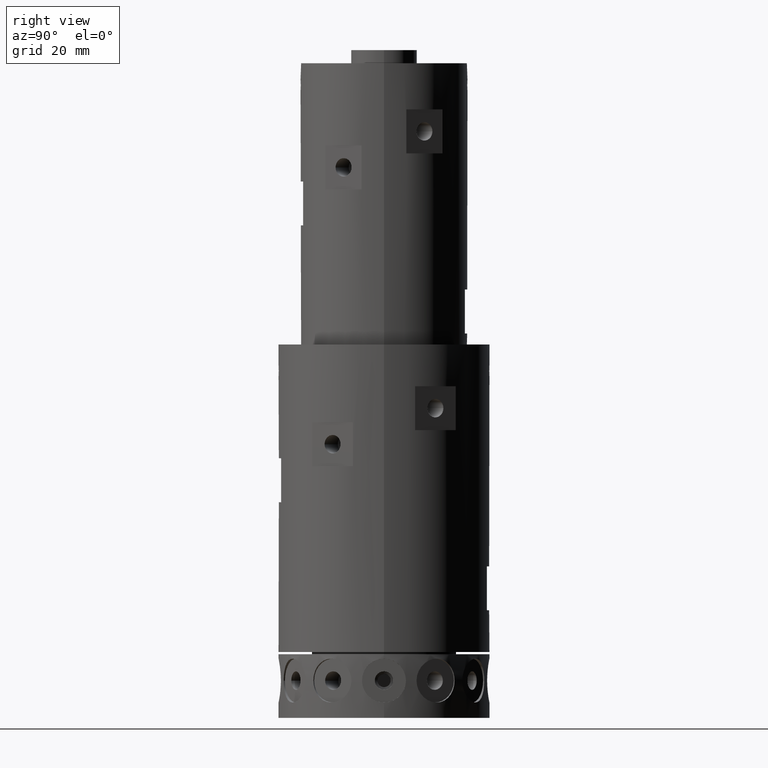
[diagram: clean part render]
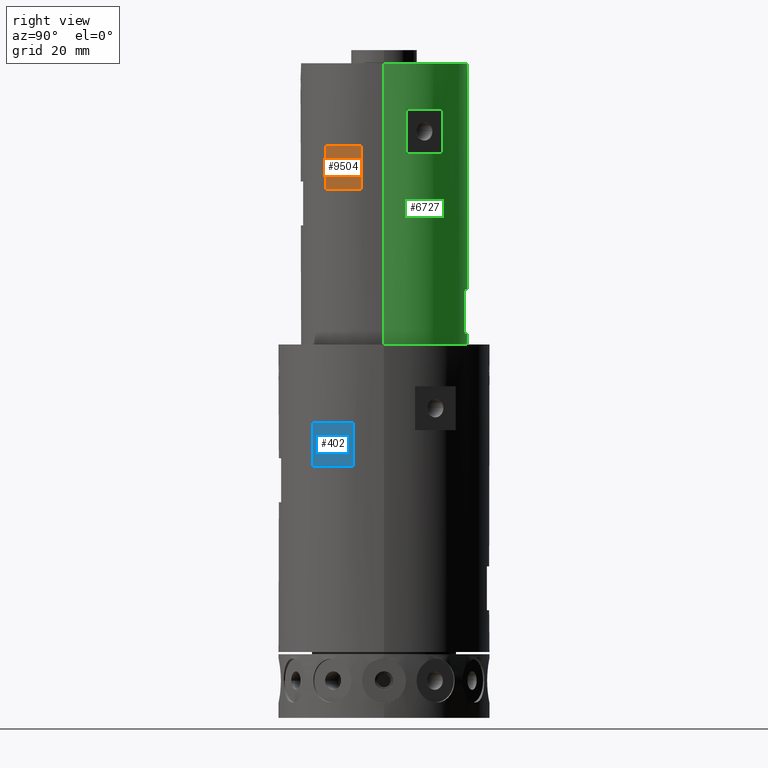
[diagram: same view with three faces highlighted in distinct colors, each labeled with its STEP entity id]
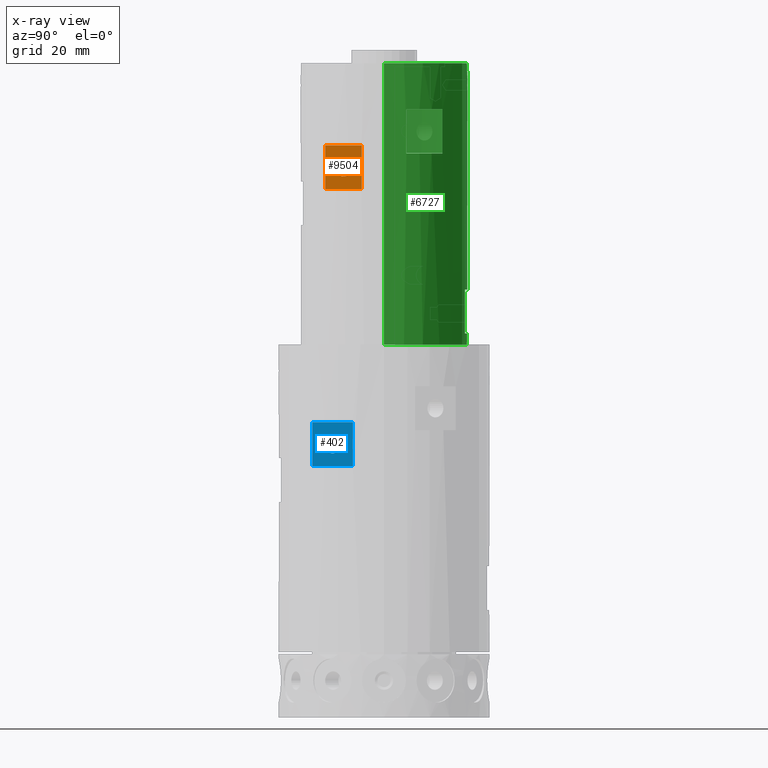
[diagram: x-ray of the same camera — body ghosted, the three highlighted faces saturated]
A machine part, right view with three faces highlighted in distinct colors.
The next image is the same camera in x-ray (body ghosted, the three faces saturated) — at least one of them is partly hidden behind the body in this view.
Their STEP definitions:

[orange] entity #9504 — the highlighted planar face has unit normal (-0.866, 0.5, 0).
#174 = CARTESIAN_POINT ( 'NONE',  ( 14.88486742963363200, -11.01865334794738900, 125.3000000000000000 ) ) ;
#500 = ORIENTED_EDGE ( 'NONE', *, *, #3234, .F. ) ;
#800 = LINE ( 'NONE', #1451, #5185 ) ;
#869 = DIRECTION ( 'NONE',  ( -0.0000000000000000000, -0.0000000000000000000, -1.000000000000000000 ) ) ;
#1186 = LINE ( 'NONE', #3003, #4598 ) ;
#1353 = CARTESIAN_POINT ( 'NONE',  ( 15.93486742963363600, -9.200000000000081000, 125.3000000000000000 ) ) ;
#1451 = CARTESIAN_POINT ( 'NONE',  ( 12.81503244960727600, -14.60371269663629000, 130.3000000000000100 ) ) ;
#2076 = VERTEX_POINT ( 'NONE', #9447 ) ;
#2140 = DIRECTION ( 'NONE',  ( 0.5000000000000047700, 0.8660254037844359300, 0.0000000000000000000 ) ) ;
#2286 = ORIENTED_EDGE ( 'NONE', *, *, #6795, .T. ) ;
#2421 = VERTEX_POINT ( 'NONE', #6896 ) ;
#2424 = DIRECTION ( 'NONE',  ( -0.8660254037844363800, 0.5000000000000040000, 0.0000000000000000000 ) ) ;
#2917 = CARTESIAN_POINT ( 'NONE',  ( 16.98486742963364200, -7.381346652052772400, 125.3000000000000000 ) ) ;
#3003 = CARTESIAN_POINT ( 'NONE',  ( 12.81503244960727600, -14.60371269663629000, 120.3000000000000000 ) ) ;
#3234 = EDGE_CURVE ( 'NONE', #2421, #6018, #3955, .T. ) ;
#3265 = VERTEX_POINT ( 'NONE', #174 ) ;
#3580 = LINE ( 'NONE', #8672, #7747 ) ;
#3710 = VECTOR ( 'NONE', #7187, 1000.000000000000000 ) ;
#3808 = VERTEX_POINT ( 'NONE', #2917 ) ;
#3902 = AXIS2_PLACEMENT_3D ( 'NONE', #7912, #2424, #4769 ) ;
#3955 = LINE ( 'NONE', #4810, #3710 ) ;
#4012 = PLANE ( 'NONE',  #3902 ) ;
#4032 = CARTESIAN_POINT ( 'NONE',  ( 15.93486742963363600, -9.200000000000081000, 125.3000000000000000 ) ) ;
#4152 = FACE_BOUND ( 'NONE', #9156, .T. ) ;
#4598 = VECTOR ( 'NONE', #5362, 1000.000000000000100 ) ;
#4599 = AXIS2_PLACEMENT_3D ( 'NONE', #4032, #9505, #4790 ) ;
#4769 = DIRECTION ( 'NONE',  ( -0.5000000000000040000, -0.8660254037844363800, 0.0000000000000000000 ) ) ;
#4790 = DIRECTION ( 'NONE',  ( 0.5000000000000047700, 0.8660254037844359300, 0.0000000000000000000 ) ) ;
#4810 = CARTESIAN_POINT ( 'NONE',  ( 13.56632357316821700, -13.30243829935325700, 149.0000000000000300 ) ) ;
#5185 = VECTOR ( 'NONE', #6923, 1000.000000000000100 ) ;
#5362 = DIRECTION ( 'NONE',  ( 0.5000000000000040000, 0.8660254037844363800, 0.0000000000000000000 ) ) ;
#5453 = EDGE_CURVE ( 'NONE', #2076, #6096, #3580, .T. ) ;
#5607 = ORIENTED_EDGE ( 'NONE', *, *, #7538, .T. ) ;
#6018 = VERTEX_POINT ( 'NONE', #8178 ) ;
#6096 = VERTEX_POINT ( 'NONE', #9030 ) ;
#6356 = CIRCLE ( 'NONE', #7826, 2.099999999999991700 ) ;
#6650 = ORIENTED_EDGE ( 'NONE', *, *, #5453, .F. ) ;
#6795 = EDGE_CURVE ( 'NONE', #2421, #6096, #1186, .T. ) ;
#6827 = DIRECTION ( 'NONE',  ( 0.8660254037844363800, -0.5000000000000043300, -0.0000000000000000000 ) ) ;
#6896 = CARTESIAN_POINT ( 'NONE',  ( 13.56632357316821200, -13.30243829935325400, 120.3000000000000000 ) ) ;
#6923 = DIRECTION ( 'NONE',  ( -0.5000000000000040000, -0.8660254037844363800, -0.0000000000000000000 ) ) ;
#7146 = EDGE_CURVE ( 'NONE', #3808, #3265, #8420, .T. ) ;
#7187 = DIRECTION ( 'NONE',  ( 0.0000000000000000000, 0.0000000000000000000, 1.000000000000000000 ) ) ;
#7399 = EDGE_LOOP ( 'NONE', ( #5607, #500, #2286, #6650 ) ) ;
#7538 = EDGE_CURVE ( 'NONE', #2076, #6018, #800, .T. ) ;
#7747 = VECTOR ( 'NONE', #869, 1000.000000000000000 ) ;
#7818 = FACE_OUTER_BOUND ( 'NONE', #7399, .T. ) ;
#7826 = AXIS2_PLACEMENT_3D ( 'NONE', #1353, #6827, #2140 ) ;
#7912 = CARTESIAN_POINT ( 'NONE',  ( 19.05470240965997800, -3.796287303363854400, 130.3000000000000100 ) ) ;
#8178 = CARTESIAN_POINT ( 'NONE',  ( 13.56632357316821700, -13.30243829935325700, 130.3000000000000100 ) ) ;
#8420 = CIRCLE ( 'NONE', #4599, 2.099999999999991700 ) ;
#8672 = CARTESIAN_POINT ( 'NONE',  ( 18.30341128609904500, -5.097561700646895000, 149.0000000000000300 ) ) ;
#8687 = EDGE_CURVE ( 'NONE', #3265, #3808, #6356, .T. ) ;
#9030 = CARTESIAN_POINT ( 'NONE',  ( 18.30341128609904200, -5.097561700646895000, 120.3000000000000000 ) ) ;
#9156 = EDGE_LOOP ( 'NONE', ( #9171, #9326 ) ) ;
#9171 = ORIENTED_EDGE ( 'NONE', *, *, #7146, .F. ) ;
#9326 = ORIENTED_EDGE ( 'NONE', *, *, #8687, .F. ) ;
#9447 = CARTESIAN_POINT ( 'NONE',  ( 18.30341128609904200, -5.097561700646895000, 130.3000000000000100 ) ) ;
#9504 = ADVANCED_FACE ( 'NONE', ( #4152, #7818 ), #4012, .F. ) ;
#9505 = DIRECTION ( 'NONE',  ( 0.8660254037844363800, -0.5000000000000043300, -0.0000000000000000000 ) ) ;

[blue] entity #402 — the highlighted planar face has unit normal (-0.866, 0.5, 0).
#52 = DIRECTION ( 'NONE',  ( -0.8660254037844363800, 0.5000000000000040000, 0.0000000000000000000 ) ) ;
#289 = CIRCLE ( 'NONE', #7080, 2.099999999999983700 ) ;
#402 = ADVANCED_FACE ( 'NONE', ( #8025, #10112 ), #9424, .F. ) ;
#444 = DIRECTION ( 'NONE',  ( 0.5000000000000040000, 0.8660254037844363800, 0.0000000000000000000 ) ) ;
#458 = EDGE_LOOP ( 'NONE', ( #3377, #7313, #9608, #3032 ) ) ;
#898 = VERTEX_POINT ( 'NONE', #5982 ) ;
#1109 = CARTESIAN_POINT ( 'NONE',  ( 17.59853612336109300, -16.31844129550230300, 85.00000000000000000 ) ) ;
#1334 = VECTOR ( 'NONE', #1884, 1000.000000000000000 ) ;
#1572 = LINE ( 'NONE', #1109, #1334 ) ;
#1884 = DIRECTION ( 'NONE',  ( 0.0000000000000000000, 0.0000000000000000000, 1.000000000000000000 ) ) ;
#2414 = AXIS2_PLACEMENT_3D ( 'NONE', #8648, #3960, #9435 ) ;
#2593 = DIRECTION ( 'NONE',  ( -0.0000000000000000000, -0.0000000000000000000, -1.000000000000000000 ) ) ;
#2695 = LINE ( 'NONE', #3717, #6872 ) ;
#2786 = AXIS2_PLACEMENT_3D ( 'NONE', #7059, #52, #5510 ) ;
#3032 = ORIENTED_EDGE ( 'NONE', *, *, #6569, .F. ) ;
#3306 = CARTESIAN_POINT ( 'NONE',  ( 17.59853612336109300, -16.31844129550230300, 67.29999999999999700 ) ) ;
#3377 = ORIENTED_EDGE ( 'NONE', *, *, #3814, .T. ) ;
#3467 = VECTOR ( 'NONE', #444, 999.9999999999998900 ) ;
#3717 = CARTESIAN_POINT ( 'NONE',  ( 16.50546103056460400, -18.21170289271387300, 67.29999999999999700 ) ) ;
#3814 = EDGE_CURVE ( 'NONE', #898, #8365, #2695, .T. ) ;
#3893 = EDGE_CURVE ( 'NONE', #6648, #7422, #8484, .T. ) ;
#3960 = DIRECTION ( 'NONE',  ( 0.8660254037844363800, -0.5000000000000040000, -0.0000000000000000000 ) ) ;
#4185 = DIRECTION ( 'NONE',  ( 0.8660254037844363800, -0.5000000000000040000, -0.0000000000000000000 ) ) ;
#4191 = CARTESIAN_POINT ( 'NONE',  ( 22.93145277375052500, -7.081558704497880700, 85.00000000000000000 ) ) ;
#4342 = CARTESIAN_POINT ( 'NONE',  ( 16.50546103056460400, -18.21170289271387300, 57.30000000000000400 ) ) ;
#4424 = CARTESIAN_POINT ( 'NONE',  ( 21.31499444855580800, -9.881346652052782200, 62.30000000000000400 ) ) ;
#4591 = EDGE_CURVE ( 'NONE', #7422, #6648, #289, .T. ) ;
#4701 = EDGE_CURVE ( 'NONE', #7584, #10159, #5796, .T. ) ;
#4746 = EDGE_LOOP ( 'NONE', ( #7865, #7148 ) ) ;
#4880 = CARTESIAN_POINT ( 'NONE',  ( 22.93145277375052500, -7.081558704497879800, 57.30000000000000400 ) ) ;
#4959 = LINE ( 'NONE', #4191, #9149 ) ;
#5510 = DIRECTION ( 'NONE',  ( -0.5000000000000040000, -0.8660254037844363800, 0.0000000000000000000 ) ) ;
#5796 = LINE ( 'NONE', #4342, #3467 ) ;
#5982 = CARTESIAN_POINT ( 'NONE',  ( 22.93145277375052500, -7.081558704497879800, 67.29999999999999700 ) ) ;
#6569 = EDGE_CURVE ( 'NONE', #898, #10159, #4959, .T. ) ;
#6648 = VERTEX_POINT ( 'NONE', #9758 ) ;
#6872 = VECTOR ( 'NONE', #7615, 999.9999999999998900 ) ;
#7059 = CARTESIAN_POINT ( 'NONE',  ( 24.02452786654701800, -5.188297107286301100, 67.29999999999999700 ) ) ;
#7080 = AXIS2_PLACEMENT_3D ( 'NONE', #8875, #4185, #9652 ) ;
#7148 = ORIENTED_EDGE ( 'NONE', *, *, #3893, .F. ) ;
#7313 = ORIENTED_EDGE ( 'NONE', *, *, #9073, .F. ) ;
#7422 = VERTEX_POINT ( 'NONE', #4424 ) ;
#7584 = VERTEX_POINT ( 'NONE', #9325 ) ;
#7615 = DIRECTION ( 'NONE',  ( -0.5000000000000040000, -0.8660254037844363800, -0.0000000000000000000 ) ) ;
#7865 = ORIENTED_EDGE ( 'NONE', *, *, #4591, .F. ) ;
#8025 = FACE_BOUND ( 'NONE', #4746, .T. ) ;
#8365 = VERTEX_POINT ( 'NONE', #3306 ) ;
#8484 = CIRCLE ( 'NONE', #2414, 2.099999999999983700 ) ;
#8648 = CARTESIAN_POINT ( 'NONE',  ( 20.26499444855580400, -11.70000000000009000, 62.30000000000000400 ) ) ;
#8875 = CARTESIAN_POINT ( 'NONE',  ( 20.26499444855580400, -11.70000000000009000, 62.30000000000000400 ) ) ;
#9073 = EDGE_CURVE ( 'NONE', #7584, #8365, #1572, .T. ) ;
#9149 = VECTOR ( 'NONE', #2593, 1000.000000000000000 ) ;
#9325 = CARTESIAN_POINT ( 'NONE',  ( 17.59853612336109300, -16.31844129550230300, 57.30000000000000400 ) ) ;
#9424 = PLANE ( 'NONE',  #2786 ) ;
#9435 = DIRECTION ( 'NONE',  ( 0.5000000000000033300, 0.8660254037844367100, 0.0000000000000000000 ) ) ;
#9608 = ORIENTED_EDGE ( 'NONE', *, *, #4701, .T. ) ;
#9652 = DIRECTION ( 'NONE',  ( 0.5000000000000033300, 0.8660254037844367100, 0.0000000000000000000 ) ) ;
#9758 = CARTESIAN_POINT ( 'NONE',  ( 19.21499444855580300, -13.51865334794739900, 62.30000000000000400 ) ) ;
#10112 = FACE_OUTER_BOUND ( 'NONE', #458, .T. ) ;
#10159 = VERTEX_POINT ( 'NONE', #4880 ) ;

[green] entity #6727 — the highlighted cylindrical surface (partial cylindrical patch) has radius 19 mm, axis along (-0, -0, -1).
#65 = CARTESIAN_POINT ( 'NONE',  ( -1.250058317250626100, 18.95883314465575300, 143.8373396589131500 ) ) ;
#78 = CIRCLE ( 'NONE', #7231, 19.00000000000000000 ) ;
#131 = DIRECTION ( 'NONE',  ( -0.0000000000000000000, -0.0000000000000000000, -1.000000000000000000 ) ) ;
#140 = LINE ( 'NONE', #1610, #10069 ) ;
#161 = DIRECTION ( 'NONE',  ( 0.0000000000000000000, 0.0000000000000000000, -1.000000000000000000 ) ) ;
#221 = EDGE_LOOP ( 'NONE', ( #6794, #7219, #3789, #1837 ) ) ;
#224 = ORIENTED_EDGE ( 'NONE', *, *, #1850, .F. ) ;
#234 = CARTESIAN_POINT ( 'NONE',  ( 18.30341128609913100, 5.097561700646616100, 128.5000000000000000 ) ) ;
#240 = DIRECTION ( 'NONE',  ( -7.898602945149931600E-016, -0.0000000000000000000, -1.000000000000000000 ) ) ;
#316 = CARTESIAN_POINT ( 'NONE',  ( 4.737087712930802200, 18.39999999999999900, 97.50000000000000000 ) ) ;
#327 = DIRECTION ( 'NONE',  ( 0.0000000000000000000, 0.0000000000000000000, 1.000000000000000000 ) ) ;
#339 = VERTEX_POINT ( 'NONE', #3883 ) ;
#349 = EDGE_CURVE ( 'NONE', #6679, #3514, #2264, .T. ) ;
#401 = CARTESIAN_POINT ( 'NONE',  ( 4.737087712930802200, 18.39999999999999900, 87.50000000000000000 ) ) ;
#457 = CARTESIAN_POINT ( 'NONE',  ( 0.0000000000000000000, 0.0000000000000000000, 149.0000000000000300 ) ) ;
#557 = DIRECTION ( 'NONE',  ( -1.000000000000000000, 0.0000000000000000000, 0.0000000000000000000 ) ) ;
#624 = CARTESIAN_POINT ( 'NONE',  ( 0.9421290022515113000, 18.97671522148263900, 144.8255562941886000 ) ) ;
#758 = VECTOR ( 'NONE', #3656, 1000.000000000000000 ) ;
#765 = B_SPLINE_CURVE_WITH_KNOTS ( 'NONE', 3,
 ( #2129, #9178, #6070, #1373, #6853, #2156, #7643, #2942, #8445, #3740, #9215, #4514, #10011, #5297, #624, #6099, #1411, #6881, #2195, #7675 ),
 .UNSPECIFIED., .F., .F.,
 ( 4, 2, 2, 2, 2, 2, 2, 2, 2, 4 ),
 ( 0.003909125343881998700, 0.004397653861788853500, 0.004886182379695709100, 0.005374710897602563900, 0.005863239415509418700, 0.006351767933416273400, 0.006596032192369662700, 0.006840296451323051900, 0.007328824969229831200, 0.007817353487136609700 ),
 .UNSPECIFIED. ) ;
#844 = CARTESIAN_POINT ( 'NONE',  ( -1.092404159769147000, 18.96867392154010500, 143.3707234915920900 ) ) ;
#875 = B_SPLINE_CURVE_WITH_KNOTS ( 'NONE', 3,
 ( #3127, #3932, #2378, #7862, #3162, #8653, #3964, #9438, #4727, #65, #5524, #844, #6319, #1614, #7107, #2410, #7897, #3194, #8684, #3995 ),
 .UNSPECIFIED., .F., .F.,
 ( 4, 2, 2, 2, 2, 2, 2, 2, 2, 4 ),
 ( 6.489099443891829800E-019, 0.0004886406679852504800, 0.0009772813359705003200, 0.001465922003955750400, 0.001954562671940999800, 0.002443203339926249600, 0.002931844007911499900, 0.003420484675896749300, 0.003664805009889373800, 0.003909125343881998700 ),
 .UNSPECIFIED. ) ;
#972 = CIRCLE ( 'NONE', #8910, 19.00000000000000000 ) ;
#1079 = CIRCLE ( 'NONE', #4440, 19.00000000000000000 ) ;
#1247 = DIRECTION ( 'NONE',  ( 1.000000000000000000, 0.0000000000000000000, 0.0000000000000000000 ) ) ;
#1364 = CARTESIAN_POINT ( 'NONE',  ( -13.56632357316819400, 13.30243829935328200, 105.7000000000000000 ) ) ;
#1373 = CARTESIAN_POINT ( 'NONE',  ( 0.6284689403187960800, 18.99019934914613100, 142.9072815296019300 ) ) ;
#1411 = CARTESIAN_POINT ( 'NONE',  ( 0.6299770711379906200, 18.99014862732530100, 145.0918483180423100 ) ) ;
#1491 = CARTESIAN_POINT ( 'NONE',  ( 18.30341128609913100, 5.097561700646616100, 138.5000000000000000 ) ) ;
#1505 = CARTESIAN_POINT ( 'NONE',  ( 18.30341128609912700, 5.097561700646615200, 149.0000000000000300 ) ) ;
#1509 = DIRECTION ( 'NONE',  ( 0.0000000000000000000, -0.0000000000000000000, 1.000000000000000000 ) ) ;
#1557 = ORIENTED_EDGE ( 'NONE', *, *, #8320, .F. ) ;
#1610 = CARTESIAN_POINT ( 'NONE',  ( -13.56632357316819600, 13.30243829935327900, 149.0000000000000300 ) ) ;
#1614 = CARTESIAN_POINT ( 'NONE',  ( -0.7673861500865032400, 18.98485612870543400, 142.9995710254347300 ) ) ;
#1772 = EDGE_CURVE ( 'NONE', #6679, #4055, #7952, .T. ) ;
#1837 = ORIENTED_EDGE ( 'NONE', *, *, #2761, .F. ) ;
#1850 = EDGE_CURVE ( 'NONE', #339, #8156, #972, .T. ) ;
#2019 = DIRECTION ( 'NONE',  ( 0.0000000000000000000, -0.0000000000000000000, 1.000000000000000000 ) ) ;
#2120 = DIRECTION ( 'NONE',  ( -0.0000000000000000000, -0.0000000000000000000, -1.000000000000000000 ) ) ;
#2129 = CARTESIAN_POINT ( 'NONE',  ( -8.550973866448890800E-013, 19.00000000000051500, 142.7499999999921600 ) ) ;
#2156 = CARTESIAN_POINT ( 'NONE',  ( 0.9985797259938560300, 18.97409192928777000, 143.2306523073060300 ) ) ;
#2195 = CARTESIAN_POINT ( 'NONE',  ( 0.1651908936683373100, 19.00000000000000000, 145.2500000000000000 ) ) ;
#2264 = LINE ( 'NONE', #3116, #6186 ) ;
#2320 = EDGE_LOOP ( 'NONE', ( #4631, #7209, #5257, #1557 ) ) ;
#2334 = DIRECTION ( 'NONE',  ( -0.0000000000000000000, -0.0000000000000000000, -1.000000000000000000 ) ) ;
#2378 = CARTESIAN_POINT ( 'NONE',  ( -0.3273594769090731900, 18.99778319713543000, 145.2174526923604400 ) ) ;
#2410 = CARTESIAN_POINT ( 'NONE',  ( -0.4026100422895000900, 18.99588492740559400, 142.8137772062220600 ) ) ;
#2544 = AXIS2_PLACEMENT_3D ( 'NONE', #6207, #1509, #6987 ) ;
#2630 = EDGE_CURVE ( 'NONE', #7028, #9458, #1079, .T. ) ;
#2639 = AXIS2_PLACEMENT_3D ( 'NONE', #4988, #327, #5797 ) ;
#2724 = CARTESIAN_POINT ( 'NONE',  ( 19.00000000000000000, 2.326828918379971000E-015, 149.0000000000000300 ) ) ;
#2761 = EDGE_CURVE ( 'NONE', #8797, #7028, #5546, .T. ) ;
#2764 = ORIENTED_EDGE ( 'NONE', *, *, #7115, .T. ) ;
#2938 = CIRCLE ( 'NONE', #2544, 19.00000000000000000 ) ;
#2942 = CARTESIAN_POINT ( 'NONE',  ( 1.217172605202015300, 18.96107719701377900, 143.6716887747872700 ) ) ;
#2998 = VERTEX_POINT ( 'NONE', #316 ) ;
#2999 = CARTESIAN_POINT ( 'NONE',  ( -13.56632357316819400, 13.30243829935328200, 95.70000000000000300 ) ) ;
#3011 = CYLINDRICAL_SURFACE ( 'NONE', #3218, 19.00000000000000000 ) ;
#3116 = CARTESIAN_POINT ( 'NONE',  ( 19.00000000000000000, 2.326828918379971000E-015, 149.0000000000000300 ) ) ;
#3127 = CARTESIAN_POINT ( 'NONE',  ( -6.677583123658821400E-016, 19.00000000000000000, 145.2500000000000300 ) ) ;
#3162 = CARTESIAN_POINT ( 'NONE',  ( -0.7687692431800360300, 18.98479158746850400, 144.9990403178982500 ) ) ;
#3194 = CARTESIAN_POINT ( 'NONE',  ( -0.1644627064553371700, 18.99945710809651100, 142.7581768311555400 ) ) ;
#3218 = AXIS2_PLACEMENT_3D ( 'NONE', #6024, #2120, #9172 ) ;
#3230 = VERTEX_POINT ( 'NONE', #5610 ) ;
#3244 = CARTESIAN_POINT ( 'NONE',  ( 0.0000000000000000000, 0.0000000000000000000, 97.50000000000000000 ) ) ;
#3250 = FACE_OUTER_BOUND ( 'NONE', #2320, .T. ) ;
#3298 = EDGE_CURVE ( 'NONE', #8487, #8547, #5535, .T. ) ;
#3390 = CIRCLE ( 'NONE', #5598, 19.00000000000000000 ) ;
#3440 = EDGE_CURVE ( 'NONE', #8547, #2998, #6151, .T. ) ;
#3465 = VECTOR ( 'NONE', #6983, 1000.000000000000000 ) ;
#3508 = FACE_BOUND ( 'NONE', #8979, .T. ) ;
#3514 = VERTEX_POINT ( 'NONE', #5948 ) ;
#3550 = EDGE_CURVE ( 'NONE', #9458, #3230, #5144, .T. ) ;
#3552 = EDGE_CURVE ( 'NONE', #8010, #8487, #9104, .T. ) ;
#3656 = DIRECTION ( 'NONE',  ( 0.0000000000000000000, 0.0000000000000000000, 1.000000000000000000 ) ) ;
#3675 = VERTEX_POINT ( 'NONE', #2999 ) ;
#3736 = VERTEX_POINT ( 'NONE', #5973 ) ;
#3740 = CARTESIAN_POINT ( 'NONE',  ( 1.250133403421740200, 18.95882819405338200, 144.1639518690330100 ) ) ;
#3789 = ORIENTED_EDGE ( 'NONE', *, *, #2630, .F. ) ;
#3831 = VECTOR ( 'NONE', #9786, 1000.000000000000000 ) ;
#3883 = CARTESIAN_POINT ( 'NONE',  ( -18.30341128609905300, 5.097561700646871000, 105.7000000000000000 ) ) ;
#3932 = CARTESIAN_POINT ( 'NONE',  ( -0.1652288160638590600, 19.00000000000000400, 145.2500000000000600 ) ) ;
#3952 = EDGE_CURVE ( 'NONE', #8156, #3675, #140, .T. ) ;
#3964 = CARTESIAN_POINT ( 'NONE',  ( -1.092443709243115200, 18.96867066390409900, 144.6289517533621200 ) ) ;
#3980 = CARTESIAN_POINT ( 'NONE',  ( 13.56632357316839200, 13.30243829935307400, 128.5000000000000000 ) ) ;
#3995 = CARTESIAN_POINT ( 'NONE',  ( -8.550973866448890800E-013, 19.00000000000051500, 142.7499999999921600 ) ) ;
#4051 = DIRECTION ( 'NONE',  ( 1.000000000000000000, 0.0000000000000000000, 0.0000000000000000000 ) ) ;
#4055 = VERTEX_POINT ( 'NONE', #5687 ) ;
#4127 = VERTEX_POINT ( 'NONE', #8964 ) ;
#4238 = ORIENTED_EDGE ( 'NONE', *, *, #4278, .T. ) ;
#4246 = CARTESIAN_POINT ( 'NONE',  ( -4.737087712930802200, 18.39999999999999900, 87.50000000000001400 ) ) ;
#4278 = EDGE_CURVE ( 'NONE', #5504, #3736, #765, .T. ) ;
#4312 = CARTESIAN_POINT ( 'NONE',  ( 4.737087712930802200, 18.39999999999999900, 149.0000000000000300 ) ) ;
#4333 = EDGE_CURVE ( 'NONE', #3675, #4127, #2938, .T. ) ;
#4440 = AXIS2_PLACEMENT_3D ( 'NONE', #6704, #2019, #7502 ) ;
#4514 = CARTESIAN_POINT ( 'NONE',  ( 1.123751975623305200, 18.96676480977130900, 144.5535385365070900 ) ) ;
#4631 = ORIENTED_EDGE ( 'NONE', *, *, #1772, .F. ) ;
#4727 = CARTESIAN_POINT ( 'NONE',  ( -1.249941522518333900, 18.95884084520226100, 144.1635554137731700 ) ) ;
#4825 = CARTESIAN_POINT ( 'NONE',  ( 0.0000000000000000000, 0.0000000000000000000, 138.5000000000000000 ) ) ;
#4901 = VERTEX_POINT ( 'NONE', #6970 ) ;
#4906 = CARTESIAN_POINT ( 'NONE',  ( 0.0000000000000000000, 0.0000000000000000000, 87.50000000000000000 ) ) ;
#4957 = ORIENTED_EDGE ( 'NONE', *, *, #4333, .F. ) ;
#4988 = CARTESIAN_POINT ( 'NONE',  ( 0.0000000000000000000, 0.0000000000000000000, 85.00000000000000000 ) ) ;
#5125 = VECTOR ( 'NONE', #131, 1000.000000000000000 ) ;
#5144 = LINE ( 'NONE', #8363, #758 ) ;
#5202 = AXIS2_PLACEMENT_3D ( 'NONE', #457, #5929, #1247 ) ;
#5226 = DIRECTION ( 'NONE',  ( 0.0000000000000000000, 0.0000000000000000000, -1.000000000000000000 ) ) ;
#5232 = EDGE_CURVE ( 'NONE', #4127, #339, #8988, .T. ) ;
#5257 = ORIENTED_EDGE ( 'NONE', *, *, #9745, .T. ) ;
#5297 = CARTESIAN_POINT ( 'NONE',  ( 0.9948643419412975800, 18.97399009978242600, 144.7611878001246700 ) ) ;
#5309 = ORIENTED_EDGE ( 'NONE', *, *, #10078, .T. ) ;
#5337 = FACE_BOUND ( 'NONE', #5476, .T. ) ;
#5476 = EDGE_LOOP ( 'NONE', ( #2764, #4238 ) ) ;
#5504 = VERTEX_POINT ( 'NONE', #7951 ) ;
#5524 = CARTESIAN_POINT ( 'NONE',  ( -1.217666121692509500, 18.96104497136376200, 143.6734651804212600 ) ) ;
#5527 = ORIENTED_EDGE ( 'NONE', *, *, #3552, .T. ) ;
#5535 = CIRCLE ( 'NONE', #9830, 19.00000000000000000 ) ;
#5546 = LINE ( 'NONE', #1505, #3465 ) ;
#5567 = CARTESIAN_POINT ( 'NONE',  ( -19.00000000000000000, 0.0000000000000000000, 149.0000000000000300 ) ) ;
#5598 = AXIS2_PLACEMENT_3D ( 'NONE', #3244, #8736, #4051 ) ;
#5610 = CARTESIAN_POINT ( 'NONE',  ( 13.56632357316838600, 13.30243829935309000, 138.5000000000000000 ) ) ;
#5626 = DIRECTION ( 'NONE',  ( -1.000000000000000000, 0.0000000000000000000, 0.0000000000000000000 ) ) ;
#5687 = CARTESIAN_POINT ( 'NONE',  ( -19.00000000000000000, 0.0000000000000000000, 149.0000000000000300 ) ) ;
#5707 = DIRECTION ( 'NONE',  ( -1.000000000000000000, 0.0000000000000000000, 7.304098846218134700E-016 ) ) ;
#5797 = DIRECTION ( 'NONE',  ( 1.000000000000000000, 0.0000000000000000000, 0.0000000000000000000 ) ) ;
#5920 = CARTESIAN_POINT ( 'NONE',  ( -4.737087712930802200, 18.39999999999999900, 97.50000000000000000 ) ) ;
#5929 = DIRECTION ( 'NONE',  ( 0.0000000000000000000, 0.0000000000000000000, 1.000000000000000000 ) ) ;
#5948 = CARTESIAN_POINT ( 'NONE',  ( 19.00000000000000000, 2.326828918379971000E-015, 85.00000000000000000 ) ) ;
#5973 = CARTESIAN_POINT ( 'NONE',  ( -6.677583123658821400E-016, 19.00000000000000000, 145.2500000000000300 ) ) ;
#6024 = CARTESIAN_POINT ( 'NONE',  ( 0.0000000000000000000, 0.0000000000000000000, 149.0000000000000300 ) ) ;
#6036 = ORIENTED_EDGE ( 'NONE', *, *, #3440, .T. ) ;
#6070 = CARTESIAN_POINT ( 'NONE',  ( 0.3276022259495396900, 18.99777148275050800, 142.7827557163628000 ) ) ;
#6099 = CARTESIAN_POINT ( 'NONE',  ( 0.7692591589799976400, 18.98477155413946300, 144.9986697919517300 ) ) ;
#6151 = LINE ( 'NONE', #4312, #3831 ) ;
#6186 = VECTOR ( 'NONE', #2334, 1000.000000000000000 ) ;
#6207 = CARTESIAN_POINT ( 'NONE',  ( 0.0000000000000000000, 0.0000000000000000000, 95.70000000000000300 ) ) ;
#6319 = CARTESIAN_POINT ( 'NONE',  ( -1.000745889710761700, 18.97398617568843800, 143.2330271838446500 ) ) ;
#6342 = DIRECTION ( 'NONE',  ( -0.0000000000000000000, -0.0000000000000000000, -1.000000000000000000 ) ) ;
#6679 = VERTEX_POINT ( 'NONE', #2724 ) ;
#6686 = EDGE_LOOP ( 'NONE', ( #5527, #8808, #6036, #5309 ) ) ;
#6704 = CARTESIAN_POINT ( 'NONE',  ( 0.0000000000000000000, 0.0000000000000000000, 128.5000000000000000 ) ) ;
#6727 = ADVANCED_FACE ( 'NONE', ( #7423, #3508, #7922, #5337, #3250 ), #3011, .T. ) ;
#6766 = DIRECTION ( 'NONE',  ( -0.0000000000000000000, -0.0000000000000000000, -1.000000000000000000 ) ) ;
#6794 = ORIENTED_EDGE ( 'NONE', *, *, #7173, .F. ) ;
#6853 = CARTESIAN_POINT ( 'NONE',  ( 0.7679526563569805100, 18.98482485375684100, 143.0003470307083300 ) ) ;
#6860 = DIRECTION ( 'NONE',  ( 0.0000000000000000000, 0.0000000000000000000, 1.000000000000000000 ) ) ;
#6881 = CARTESIAN_POINT ( 'NONE',  ( 0.3293005962761950100, 18.99774136878793100, 145.2167846880460900 ) ) ;
#6885 = VECTOR ( 'NONE', #6860, 1000.000000000000000 ) ;
#6970 = CARTESIAN_POINT ( 'NONE',  ( -19.00000000000000000, 0.0000000000000000000, 85.00000000000000000 ) ) ;
#6983 = DIRECTION ( 'NONE',  ( -0.0000000000000000000, -0.0000000000000000000, -1.000000000000000000 ) ) ;
#6987 = DIRECTION ( 'NONE',  ( 1.000000000000000000, 0.0000000000000000000, 0.0000000000000000000 ) ) ;
#7002 = VECTOR ( 'NONE', #6766, 1000.000000000000000 ) ;
#7028 = VERTEX_POINT ( 'NONE', #234 ) ;
#7107 = CARTESIAN_POINT ( 'NONE',  ( -0.6298069933818415400, 18.99016322301199000, 142.9078825147400900 ) ) ;
#7115 = EDGE_CURVE ( 'NONE', #3736, #5504, #875, .T. ) ;
#7173 = EDGE_CURVE ( 'NONE', #3230, #8797, #78, .T. ) ;
#7209 = ORIENTED_EDGE ( 'NONE', *, *, #349, .T. ) ;
#7219 = ORIENTED_EDGE ( 'NONE', *, *, #3550, .F. ) ;
#7225 = LINE ( 'NONE', #5567, #5125 ) ;
#7231 = AXIS2_PLACEMENT_3D ( 'NONE', #4825, #161, #5626 ) ;
#7423 = FACE_BOUND ( 'NONE', #221, .T. ) ;
#7502 = DIRECTION ( 'NONE',  ( 1.000000000000000000, 0.0000000000000000000, 0.0000000000000000000 ) ) ;
#7643 = CARTESIAN_POINT ( 'NONE',  ( 1.091585777082990900, 18.96872157298009400, 143.3693353484418100 ) ) ;
#7675 = CARTESIAN_POINT ( 'NONE',  ( -6.677583123658821400E-016, 19.00000000000000000, 145.2500000000000300 ) ) ;
#7862 = CARTESIAN_POINT ( 'NONE',  ( -0.6301205989946462300, 18.99015214955388900, 145.0919264242523900 ) ) ;
#7897 = CARTESIAN_POINT ( 'NONE',  ( -0.3246790693793109000, 18.99739460784348900, 142.7901420470153400 ) ) ;
#7922 = FACE_BOUND ( 'NONE', #6686, .T. ) ;
#7951 = CARTESIAN_POINT ( 'NONE',  ( -8.550973866448890800E-013, 19.00000000000051500, 142.7499999999921600 ) ) ;
#7952 = CIRCLE ( 'NONE', #5202, 19.00000000000000000 ) ;
#8010 = VERTEX_POINT ( 'NONE', #5920 ) ;
#8156 = VERTEX_POINT ( 'NONE', #1364 ) ;
#8297 = CARTESIAN_POINT ( 'NONE',  ( -4.737087712930802200, 18.39999999999999900, 149.0000000000000300 ) ) ;
#8320 = EDGE_CURVE ( 'NONE', #4055, #4901, #7225, .T. ) ;
#8363 = CARTESIAN_POINT ( 'NONE',  ( 13.56632357316838300, 13.30243829935309000, 149.0000000000000300 ) ) ;
#8418 = CARTESIAN_POINT ( 'NONE',  ( -18.30341128609905300, 5.097561700646868300, 149.0000000000000300 ) ) ;
#8442 = CIRCLE ( 'NONE', #2639, 19.00000000000000000 ) ;
#8445 = CARTESIAN_POINT ( 'NONE',  ( 1.249865774090852100, 18.95884583946871900, 143.8340202166934600 ) ) ;
#8487 = VERTEX_POINT ( 'NONE', #4246 ) ;
#8547 = VERTEX_POINT ( 'NONE', #401 ) ;
#8653 = CARTESIAN_POINT ( 'NONE',  ( -0.9993245455889674400, 18.97405249864820200, 144.7683997388269600 ) ) ;
#8684 = CARTESIAN_POINT ( 'NONE',  ( -0.08159247855222560900, 18.99999999999999600, 142.7500000000001100 ) ) ;
#8736 = DIRECTION ( 'NONE',  ( 0.0000000000000000000, 0.0000000000000000000, 1.000000000000000000 ) ) ;
#8797 = VERTEX_POINT ( 'NONE', #1491 ) ;
#8808 = ORIENTED_EDGE ( 'NONE', *, *, #3298, .T. ) ;
#8910 = AXIS2_PLACEMENT_3D ( 'NONE', #9945, #5226, #557 ) ;
#8964 = CARTESIAN_POINT ( 'NONE',  ( -18.30341128609905300, 5.097561700646885200, 95.70000000000000300 ) ) ;
#8979 = EDGE_LOOP ( 'NONE', ( #224, #9186, #4957, #9363 ) ) ;
#8988 = LINE ( 'NONE', #8418, #6885 ) ;
#9104 = LINE ( 'NONE', #8297, #7002 ) ;
#9172 = DIRECTION ( 'NONE',  ( -1.000000000000000000, 0.0000000000000000000, 0.0000000000000000000 ) ) ;
#9178 = CARTESIAN_POINT ( 'NONE',  ( 0.1631475038000190200, 19.00000000000001400, 142.7499999999998300 ) ) ;
#9186 = ORIENTED_EDGE ( 'NONE', *, *, #5232, .F. ) ;
#9215 = CARTESIAN_POINT ( 'NONE',  ( 1.217772580456679200, 18.96103829830723000, 144.3262262999067200 ) ) ;
#9363 = ORIENTED_EDGE ( 'NONE', *, *, #3952, .F. ) ;
#9438 = CARTESIAN_POINT ( 'NONE',  ( -1.217112985287236400, 18.96107950499037300, 144.3280999039427900 ) ) ;
#9458 = VERTEX_POINT ( 'NONE', #3980 ) ;
#9745 = EDGE_CURVE ( 'NONE', #3514, #4901, #8442, .T. ) ;
#9786 = DIRECTION ( 'NONE',  ( 0.0000000000000000000, 0.0000000000000000000, 1.000000000000000000 ) ) ;
#9830 = AXIS2_PLACEMENT_3D ( 'NONE', #4906, #240, #5707 ) ;
#9945 = CARTESIAN_POINT ( 'NONE',  ( 0.0000000000000000000, 0.0000000000000000000, 105.7000000000000000 ) ) ;
#10011 = CARTESIAN_POINT ( 'NONE',  ( 1.085400650965238300, 18.96902635330533100, 144.6253537821178800 ) ) ;
#10069 = VECTOR ( 'NONE', #6342, 1000.000000000000000 ) ;
#10078 = EDGE_CURVE ( 'NONE', #2998, #8010, #3390, .T. ) ;